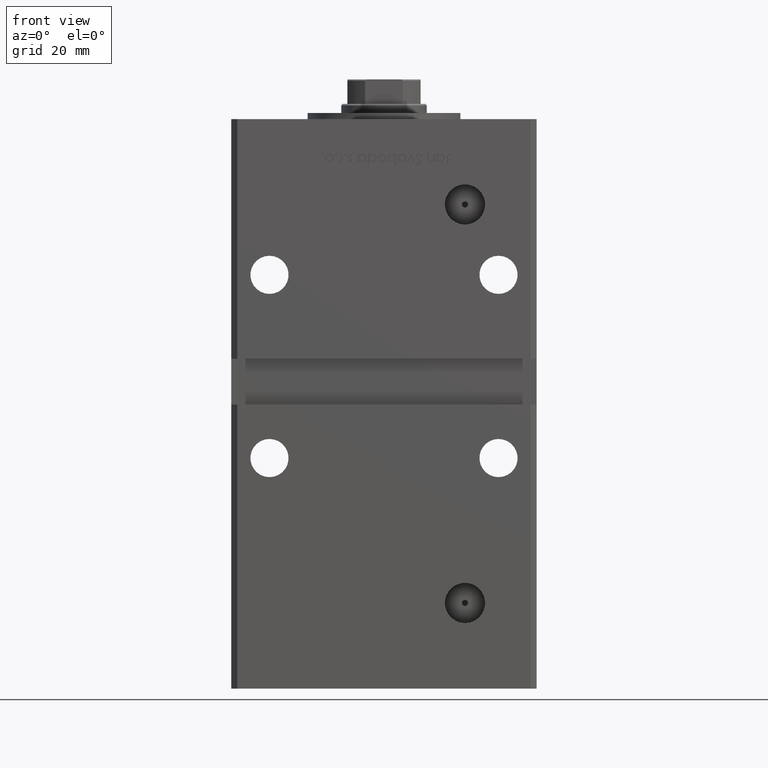
[diagram: clean part render]
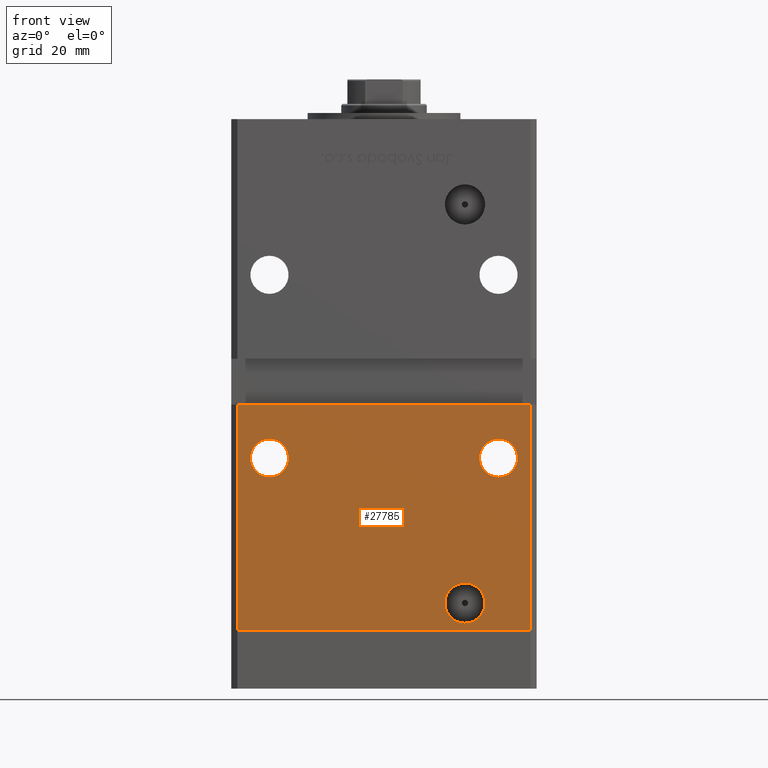
[diagram: same view with one face highlighted and labeled with its STEP entity id]
A machine part, front view. The second image highlights one B-rep face of the part: STEP entity #27785.
In plain terms, the highlighted planar face has unit normal (0, 1, 0).
Its self-contained STEP definition (entity closure, byte-faithful):
#348 = VERTEX_POINT ( 'NONE', #43206 ) ;
#402 = EDGE_CURVE ( 'NONE', #33375, #48406, #51956, .T. ) ;
#475 = LINE ( 'NONE', #41911, #52450 ) ;
#790 = DIRECTION ( 'NONE',  ( 0.000000000000000000, 1.000000000000000000, 0.000000000000000000 ) ) ;
#1148 = DIRECTION ( 'NONE',  ( 0.000000000000000000, 0.000000000000000000, 1.000000000000000000 ) ) ;
#1872 = CARTESIAN_POINT ( 'NONE',  ( -37.50000000000000000, -43.50000000000000000, 56.49999999999998579 ) ) ;
#2860 = EDGE_CURVE ( 'NONE', #6920, #16535, #50307, .T. ) ;
#3069 = VERTEX_POINT ( 'NONE', #28971 ) ;
#3999 = VERTEX_POINT ( 'NONE', #33017 ) ;
#4214 = CARTESIAN_POINT ( 'NONE',  ( 26.49999999999999645, -43.50000000000000000, 15.57999999999999474 ) ) ;
#5718 = CARTESIAN_POINT ( 'NONE',  ( -37.50000000000000000, -43.50000000000000000, 56.49999999999998579 ) ) ;
#6920 = VERTEX_POINT ( 'NONE', #27058 ) ;
#7251 = CARTESIAN_POINT ( 'NONE',  ( 37.50000000000000000, -43.50000000000000000, 56.49999999999998579 ) ) ;
#7596 = VECTOR ( 'NONE', #38013, 1000.000000000000000 ) ;
#8633 = CARTESIAN_POINT ( 'NONE',  ( -47.99999999999998579, -43.50000000000000000, 148.5000000000000000 ) ) ;
#9212 = CARTESIAN_POINT ( 'NONE',  ( 47.99999999999998579, -43.50000000000000000, 148.5000000000000000 ) ) ;
#10786 = ORIENTED_EDGE ( 'NONE', *, *, #15887, .F. ) ;
#11430 = CIRCLE ( 'NONE', #32916, 6.249999999999998224 ) ;
#13679 = DIRECTION ( 'NONE',  ( 0.000000000000000000, 0.000000000000000000, 1.000000000000000000 ) ) ;
#14171 = DIRECTION ( 'NONE',  ( 1.000000000000000000, 0.000000000000000000, 0.000000000000000000 ) ) ;
#15733 = EDGE_CURVE ( 'NONE', #48140, #28945, #39134, .T. ) ;
#15887 = EDGE_CURVE ( 'NONE', #3069, #348, #26556, .T. ) ;
#16101 = DIRECTION ( 'NONE',  ( 0.000000000000000000, 0.000000000000000000, 1.000000000000000000 ) ) ;
#16404 = ORIENTED_EDGE ( 'NONE', *, *, #18064, .F. ) ;
#16535 = VERTEX_POINT ( 'NONE', #20365 ) ;
#17179 = CARTESIAN_POINT ( 'NONE',  ( 47.99999999999998579, -43.50000000000000000, 0.000000000000000000 ) ) ;
#18064 = EDGE_CURVE ( 'NONE', #48406, #33375, #40079, .T. ) ;
#18387 = ORIENTED_EDGE ( 'NONE', *, *, #46726, .T. ) ;
#18554 = CIRCLE ( 'NONE', #48627, 6.249999999999998224 ) ;
#19608 = DIRECTION ( 'NONE',  ( 0.000000000000000000, 1.000000000000000000, 0.000000000000000000 ) ) ;
#19620 = CARTESIAN_POINT ( 'NONE',  ( -47.99999999999998579, -43.50000000000000000, 148.5000000000000000 ) ) ;
#19878 = CARTESIAN_POINT ( 'NONE',  ( 26.49999999999999645, -43.50000000000000000, 9.000000000000000000 ) ) ;
#19880 = FACE_OUTER_BOUND ( 'NONE', #43640, .T. ) ;
#20137 = DIRECTION ( 'NONE',  ( 0.000000000000000000, 1.000000000000000000, 0.000000000000000000 ) ) ;
#20175 = CARTESIAN_POINT ( 'NONE',  ( 26.49999999999999645, -43.50000000000000000, 2.420000000000004814 ) ) ;
#20365 = CARTESIAN_POINT ( 'NONE',  ( -37.50000000000000000, -43.50000000000000000, 62.74999999999998579 ) ) ;
#20406 = FACE_BOUND ( 'NONE', #30998, .T. ) ;
#20635 = CARTESIAN_POINT ( 'NONE',  ( 37.50000000000000000, -43.50000000000000000, 50.24999999999998579 ) ) ;
#22117 = EDGE_CURVE ( 'NONE', #3069, #3999, #29901, .T. ) ;
#22349 = EDGE_CURVE ( 'NONE', #28945, #48140, #18554, .T. ) ;
#22716 = AXIS2_PLACEMENT_3D ( 'NONE', #23505, #35126, #39938 ) ;
#23505 = CARTESIAN_POINT ( 'NONE',  ( 26.49999999999999645, -43.50000000000000000, 9.000000000000000000 ) ) ;
#23630 = AXIS2_PLACEMENT_3D ( 'NONE', #1872, #790, #13679 ) ;
#24442 = PLANE ( 'NONE',  #34261 ) ;
#24609 = ORIENTED_EDGE ( 'NONE', *, *, #2860, .T. ) ;
#25532 = ORIENTED_EDGE ( 'NONE', *, *, #51392, .T. ) ;
#26556 = LINE ( 'NONE', #42982, #29672 ) ;
#27058 = CARTESIAN_POINT ( 'NONE',  ( -37.50000000000000000, -43.50000000000000000, 50.24999999999998579 ) ) ;
#27719 = FACE_BOUND ( 'NONE', #46829, .T. ) ;
#27785 = ADVANCED_FACE ( 'NONE', ( #48167, #20406, #27719, #19880 ), #24442, .F. ) ;
#28945 = VERTEX_POINT ( 'NONE', #20635 ) ;
#28971 = CARTESIAN_POINT ( 'NONE',  ( -47.99999999999998579, -43.50000000000000000, 74.00000000000000000 ) ) ;
#29234 = EDGE_CURVE ( 'NONE', #348, #33981, #46092, .T. ) ;
#29672 = VECTOR ( 'NONE', #14171, 1000.000000000000000 ) ;
#29901 = LINE ( 'NONE', #8633, #42634 ) ;
#30998 = EDGE_LOOP ( 'NONE', ( #49987, #37676 ) ) ;
#32916 = AXIS2_PLACEMENT_3D ( 'NONE', #5718, #42840, #1148 ) ;
#33017 = CARTESIAN_POINT ( 'NONE',  ( -47.99999999999998579, -43.50000000000000000, 0.000000000000000000 ) ) ;
#33375 = VERTEX_POINT ( 'NONE', #4214 ) ;
#33576 = DIRECTION ( 'NONE',  ( 0.000000000000000000, 1.000000000000000000, 0.000000000000000000 ) ) ;
#33943 = DIRECTION ( 'NONE',  ( -0.000000000000000000, -0.000000000000000000, -1.000000000000000000 ) ) ;
#33981 = VERTEX_POINT ( 'NONE', #17179 ) ;
#34261 = AXIS2_PLACEMENT_3D ( 'NONE', #19620, #20137, #40887 ) ;
#34989 = ORIENTED_EDGE ( 'NONE', *, *, #29234, .F. ) ;
#35126 = DIRECTION ( 'NONE',  ( 0.000000000000000000, -1.000000000000000000, 0.000000000000000000 ) ) ;
#35447 = CARTESIAN_POINT ( 'NONE',  ( 37.50000000000000000, -43.50000000000000000, 62.74999999999998579 ) ) ;
#37321 = DIRECTION ( 'NONE',  ( 1.000000000000000000, 0.000000000000000000, 0.000000000000000000 ) ) ;
#37676 = ORIENTED_EDGE ( 'NONE', *, *, #22349, .T. ) ;
#37948 = EDGE_LOOP ( 'NONE', ( #18387, #24609 ) ) ;
#38013 = DIRECTION ( 'NONE',  ( -0.000000000000000000, -0.000000000000000000, -1.000000000000000000 ) ) ;
#38493 = ORIENTED_EDGE ( 'NONE', *, *, #22117, .T. ) ;
#39134 = CIRCLE ( 'NONE', #44266, 6.249999999999998224 ) ;
#39573 = DIRECTION ( 'NONE',  ( 0.000000000000000000, 0.000000000000000000, -1.000000000000000000 ) ) ;
#39938 = DIRECTION ( 'NONE',  ( 0.000000000000000000, 0.000000000000000000, -1.000000000000000000 ) ) ;
#40079 = CIRCLE ( 'NONE', #44347, 6.579999999999994742 ) ;
#40887 = DIRECTION ( 'NONE',  ( 0.000000000000000000, -0.000000000000000000, 1.000000000000000000 ) ) ;
#41911 = CARTESIAN_POINT ( 'NONE',  ( -47.99999999999998579, -43.50000000000000000, 0.000000000000000000 ) ) ;
#42634 = VECTOR ( 'NONE', #33943, 1000.000000000000000 ) ;
#42840 = DIRECTION ( 'NONE',  ( 0.000000000000000000, 1.000000000000000000, 0.000000000000000000 ) ) ;
#42982 = CARTESIAN_POINT ( 'NONE',  ( -49.99999999999998579, -43.50000000000000000, 74.00000000000000000 ) ) ;
#43206 = CARTESIAN_POINT ( 'NONE',  ( 47.99999999999998579, -43.50000000000000000, 74.00000000000000000 ) ) ;
#43640 = EDGE_LOOP ( 'NONE', ( #34989, #10786, #38493, #25532 ) ) ;
#44266 = AXIS2_PLACEMENT_3D ( 'NONE', #53213, #33576, #45146 ) ;
#44347 = AXIS2_PLACEMENT_3D ( 'NONE', #19878, #44398, #39573 ) ;
#44398 = DIRECTION ( 'NONE',  ( 0.000000000000000000, -1.000000000000000000, 0.000000000000000000 ) ) ;
#45146 = DIRECTION ( 'NONE',  ( 0.000000000000000000, 0.000000000000000000, 1.000000000000000000 ) ) ;
#46092 = LINE ( 'NONE', #9212, #7596 ) ;
#46726 = EDGE_CURVE ( 'NONE', #16535, #6920, #11430, .T. ) ;
#46829 = EDGE_LOOP ( 'NONE', ( #16404, #47886 ) ) ;
#47886 = ORIENTED_EDGE ( 'NONE', *, *, #402, .F. ) ;
#48140 = VERTEX_POINT ( 'NONE', #35447 ) ;
#48167 = FACE_BOUND ( 'NONE', #37948, .T. ) ;
#48406 = VERTEX_POINT ( 'NONE', #20175 ) ;
#48627 = AXIS2_PLACEMENT_3D ( 'NONE', #7251, #19608, #16101 ) ;
#49987 = ORIENTED_EDGE ( 'NONE', *, *, #15733, .T. ) ;
#50307 = CIRCLE ( 'NONE', #23630, 6.249999999999998224 ) ;
#51392 = EDGE_CURVE ( 'NONE', #3999, #33981, #475, .T. ) ;
#51956 = CIRCLE ( 'NONE', #22716, 6.579999999999994742 ) ;
#52450 = VECTOR ( 'NONE', #37321, 1000.000000000000000 ) ;
#53213 = CARTESIAN_POINT ( 'NONE',  ( 37.50000000000000000, -43.50000000000000000, 56.49999999999998579 ) ) ;